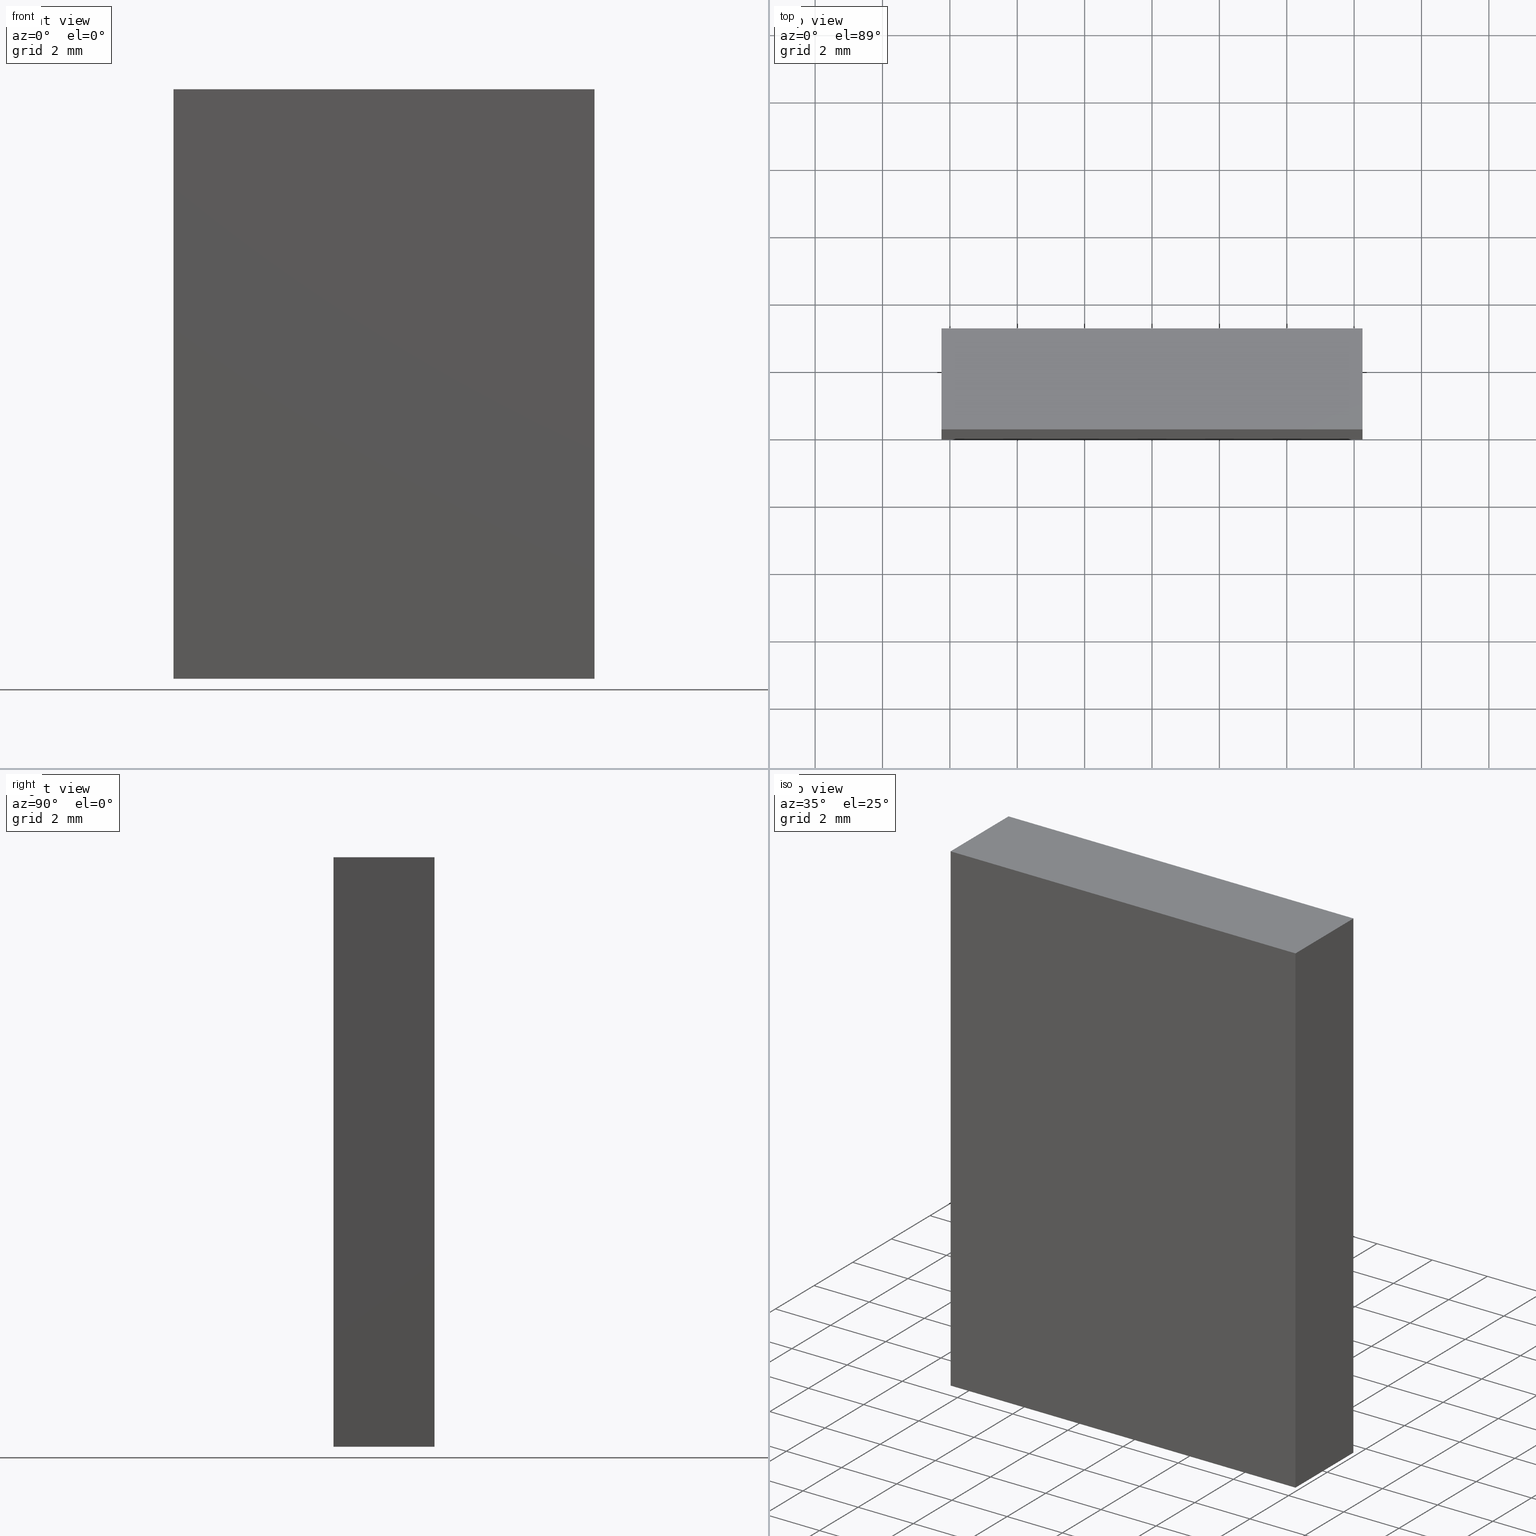
[diagram: canonical four-view strip — front | top / right | iso, engineering-drawing reading convention]
A machine part, canonical four-view strip (front | top / right | iso — engineering-drawing reading convention). The complete STEP part file that produces these views, byte-faithful:
ISO-10303-21;
HEADER;
FILE_DESCRIPTION (( 'STEP AP214' ),
    '1' );
FILE_NAME ('345502.STEP',
    '2019-08-12T02:25:35',
    ( 'user' ),
    ( '΢���й�' ),
    'SwSTEP 2.0',
    'SolidWorks 2016',
    '' );
FILE_SCHEMA (( 'AUTOMOTIVE_DESIGN' ));
ENDSEC;

DATA;
#1 = EDGE_CURVE ( 'NONE', #130, #112, #197, .T. ) ;
#2 = PRODUCT ( '345502', '345502', '', ( #106 ) ) ;
#3 = UNCERTAINTY_MEASURE_WITH_UNIT (LENGTH_MEASURE( 1.000000000000000100E-005 ), #190, 'distance_accuracy_value', 'NONE');
#4 = APPLICATION_CONTEXT ( 'automotive_design' ) ;
#5 = FACE_OUTER_BOUND ( 'NONE', #81, .T. ) ;
#6 = UNCERTAINTY_MEASURE_WITH_UNIT (LENGTH_MEASURE( 1.000000000000000100E-005 ), #198, 'distance_accuracy_value', 'NONE');
#7 = DIRECTION ( 'NONE',  ( -0.0000000000000000000, -1.000000000000000000, -0.0000000000000000000 ) ) ;
#8 = DIRECTION ( 'NONE',  ( 1.000000000000000000, 0.0000000000000000000, 0.0000000000000000000 ) ) ;
#9 = PRODUCT_DEFINITION_FORMATION_WITH_SPECIFIED_SOURCE ( '�κ�', '', #2, .NOT_KNOWN. ) ;
#10 = ORIENTED_EDGE ( 'NONE', *, *, #147, .F. ) ;
#11 = FACE_OUTER_BOUND ( 'NONE', #13, .T. ) ;
#12 = SHAPE_DEFINITION_REPRESENTATION ( #26, #201 ) ;
#13 = EDGE_LOOP ( 'NONE', ( #78, #58, #183, #171 ) ) ;
#14 = ORIENTED_EDGE ( 'NONE', *, *, #169, .T. ) ;
#15 = CARTESIAN_POINT ( 'NONE',  ( 6.249999999999998200, 3.000000000000000000, -8.750000000000000000 ) ) ;
#16 = DIRECTION ( 'NONE',  ( 1.000000000000000000, 0.0000000000000000000, -9.912705577010325500E-017 ) ) ;
#17 = PRODUCT_RELATED_PRODUCT_CATEGORY ( 'part', '', ( #2 ) ) ;
#18 = CLOSED_SHELL ( 'NONE', ( #129, #85, #82, #60, #68, #52 ) ) ;
#19 = FILL_AREA_STYLE ('',( #69 ) ) ;
#20 = DIRECTION ( 'NONE',  ( -1.000000000000000000, 0.0000000000000000000, -0.0000000000000000000 ) ) ;
#21 = DIRECTION ( 'NONE',  ( 0.0000000000000000000, 0.0000000000000000000, 1.000000000000000000 ) ) ;
#22 = ORIENTED_EDGE ( 'NONE', *, *, #117, .T. ) ;
#23 = DIRECTION ( 'NONE',  ( 1.000000000000000000, 0.0000000000000000000, -0.0000000000000000000 ) ) ;
#24 = CARTESIAN_POINT ( 'NONE',  ( -6.250000000000001800, 3.000000000000000000, -8.750000000000000000 ) ) ;
#25 = CARTESIAN_POINT ( 'NONE',  ( 6.249999999999998200, 0.0000000000000000000, -8.750000000000000000 ) ) ;
#26 = PRODUCT_DEFINITION_SHAPE ( 'NONE', 'NONE',  #200 ) ;
#27 = LINE ( 'NONE', #154, #186 ) ;
#28 = PRESENTATION_STYLE_ASSIGNMENT (( #120 ) ) ;
#29 = AXIS2_PLACEMENT_3D ( 'NONE', #137, #42, #122 ) ;
#30 = ORIENTED_EDGE ( 'NONE', *, *, #191, .F. ) ;
#31 =( NAMED_UNIT ( * ) PLANE_ANGLE_UNIT ( ) SI_UNIT ( $, .RADIAN. ) );
#32 = VECTOR ( 'NONE', #125, 1000.000000000000000 ) ;
#33 = CARTESIAN_POINT ( 'NONE',  ( -6.250000000000001800, 0.0000000000000000000, -8.750000000000000000 ) ) ;
#34 = CARTESIAN_POINT ( 'NONE',  ( -6.250000000000001800, 0.0000000000000000000, -8.750000000000000000 ) ) ;
#35 =( NAMED_UNIT ( * ) PLANE_ANGLE_UNIT ( ) SI_UNIT ( $, .RADIAN. ) );
#36 = VECTOR ( 'NONE', #118, 1000.000000000000000 ) ;
#37 = SURFACE_STYLE_FILL_AREA ( #19 ) ;
#38 = AXIS2_PLACEMENT_3D ( 'NONE', #157, #105, #20 ) ;
#39 = FILL_AREA_STYLE_COLOUR ( '', #193 ) ;
#40 = DIRECTION ( 'NONE',  ( -1.000000000000000000, -0.0000000000000000000, -0.0000000000000000000 ) ) ;
#41 = DIRECTION ( 'NONE',  ( -0.0000000000000000000, -1.000000000000000000, -0.0000000000000000000 ) ) ;
#42 = DIRECTION ( 'NONE',  ( 0.0000000000000000000, 1.000000000000000000, 0.0000000000000000000 ) ) ;
#43 = CARTESIAN_POINT ( 'NONE',  ( -6.250000000000000000, 3.000000000000000000, 8.750000000000000000 ) ) ;
#44 = DIRECTION ( 'NONE',  ( -1.000000000000000000, 0.0000000000000000000, 9.912705577010325500E-017 ) ) ;
#45 =( LENGTH_UNIT ( ) NAMED_UNIT ( * ) SI_UNIT ( .MILLI., .METRE. ) );
#46 = VECTOR ( 'NONE', #126, 1000.000000000000000 ) ;
#47 = PLANE ( 'NONE',  #29 ) ;
#48 = VECTOR ( 'NONE', #73, 1000.000000000000000 ) ;
#49 = ORIENTED_EDGE ( 'NONE', *, *, #147, .T. ) ;
#50 = ORIENTED_EDGE ( 'NONE', *, *, #161, .T. ) ;
#51 = VERTEX_POINT ( 'NONE', #128 ) ;
#52 = ADVANCED_FACE ( 'NONE', ( #79 ), #47, .F. ) ;
#53 = DIRECTION ( 'NONE',  ( -9.912705577010325500E-017, -0.0000000000000000000, -1.000000000000000000 ) ) ;
#54 = CARTESIAN_POINT ( 'NONE',  ( -6.250000000000001800, 3.000000000000000000, -8.750000000000000000 ) ) ;
#55 = VERTEX_POINT ( 'NONE', #156 ) ;
#56 = LINE ( 'NONE', #25, #166 ) ;
#57 = CARTESIAN_POINT ( 'NONE',  ( -6.250000000000001800, 3.000000000000000000, -8.750000000000000000 ) ) ;
#58 = ORIENTED_EDGE ( 'NONE', *, *, #169, .F. ) ;
#59 = PLANE ( 'NONE',  #173 ) ;
#60 = ADVANCED_FACE ( 'NONE', ( #11 ), #145, .F. ) ;
#61 = AXIS2_PLACEMENT_3D ( 'NONE', #142, #174, #75 ) ;
#62 = LINE ( 'NONE', #43, #149 ) ;
#63 =( NAMED_UNIT ( * ) SI_UNIT ( $, .STERADIAN. ) SOLID_ANGLE_UNIT ( ) );
#64 = ORIENTED_EDGE ( 'NONE', *, *, #77, .T. ) ;
#65 = EDGE_LOOP ( 'NONE', ( #189, #167, #150, #14 ) ) ;
#66 = ORIENTED_EDGE ( 'NONE', *, *, #87, .F. ) ;
#67 = LINE ( 'NONE', #108, #168 ) ;
#68 = ADVANCED_FACE ( 'NONE', ( #110 ), #100, .T. ) ;
#69 = FILL_AREA_STYLE_COLOUR ( '', #160 ) ;
#70 = FACE_OUTER_BOUND ( 'NONE', #152, .T. ) ;
#71 = VERTEX_POINT ( 'NONE', #88 ) ;
#72 = APPLICATION_PROTOCOL_DEFINITION ( 'draft international standard', 'automotive_design', 1998, #4 ) ;
#73 = DIRECTION ( 'NONE',  ( 9.912705577010325500E-017, 0.0000000000000000000, 1.000000000000000000 ) ) ;
#74 = CARTESIAN_POINT ( 'NONE',  ( -6.250000000000000000, 0.0000000000000000000, 8.750000000000000000 ) ) ;
#75 = DIRECTION ( 'NONE',  ( 0.0000000000000000000, -0.0000000000000000000, 1.000000000000000000 ) ) ;
#76 = VECTOR ( 'NONE', #8, 1000.000000000000000 ) ;
#77 = EDGE_CURVE ( 'NONE', #86, #51, #62, .T. ) ;
#78 = ORIENTED_EDGE ( 'NONE', *, *, #87, .T. ) ;
#79 = FACE_OUTER_BOUND ( 'NONE', #176, .T. ) ;
#80 = AXIS2_PLACEMENT_3D ( 'NONE', #57, #16, #107 ) ;
#81 = EDGE_LOOP ( 'NONE', ( #50, #95, #10, #22 ) ) ;
#82 = ADVANCED_FACE ( 'NONE', ( #70 ), #90, .F. ) ;
#83 = APPLICATION_PROTOCOL_DEFINITION ( 'draft international standard', 'automotive_design', 1998, #163 ) ;
#84 = DIRECTION ( 'NONE',  ( 1.000000000000000000, 0.0000000000000000000, 0.0000000000000000000 ) ) ;
#85 = ADVANCED_FACE ( 'NONE', ( #5 ), #162, .F. ) ;
#86 = VERTEX_POINT ( 'NONE', #138 ) ;
#87 = EDGE_CURVE ( 'NONE', #112, #199, #165, .T. ) ;
#88 = CARTESIAN_POINT ( 'NONE',  ( 6.249999999999998200, 0.0000000000000000000, -8.750000000000000000 ) ) ;
#89 = SURFACE_SIDE_STYLE ('',( #97 ) ) ;
#90 = PLANE ( 'NONE',  #80 ) ;
#91 = LINE ( 'NONE', #195, #155 ) ;
#92 = STYLED_ITEM ( 'NONE', ( #28 ), #101 ) ;
#93 = ORIENTED_EDGE ( 'NONE', *, *, #134, .T. ) ;
#94 =( NAMED_UNIT ( * ) SI_UNIT ( $, .STERADIAN. ) SOLID_ANGLE_UNIT ( ) );
#95 = ORIENTED_EDGE ( 'NONE', *, *, #182, .F. ) ;
#96 = EDGE_CURVE ( 'NONE', #199, #71, #56, .T. ) ;
#97 = SURFACE_STYLE_FILL_AREA ( #144 ) ;
#98 = ORIENTED_EDGE ( 'NONE', *, *, #109, .F. ) ;
#99 = AXIS2_PLACEMENT_3D ( 'NONE', #24, #21, #23 ) ;
#100 = PLANE ( 'NONE',  #61 ) ;
#101 = MANIFOLD_SOLID_BREP ( '͹̨-����1', #18 ) ;
#102 = VECTOR ( 'NONE', #41, 1000.000000000000000 ) ;
#103 = CARTESIAN_POINT ( 'NONE',  ( 0.0000000000000000000, 0.0000000000000000000, 0.0000000000000000000 ) ) ;
#104 = DIRECTION ( 'NONE',  ( 9.912705577010325500E-017, 0.0000000000000000000, 1.000000000000000000 ) ) ;
#105 = DIRECTION ( 'NONE',  ( 0.0000000000000000000, 0.0000000000000000000, -1.000000000000000000 ) ) ;
#106 = PRODUCT_CONTEXT ( 'NONE', #4, 'mechanical' ) ;
#107 = DIRECTION ( 'NONE',  ( -9.912705577010325500E-017, 0.0000000000000000000, -1.000000000000000000 ) ) ;
#108 = CARTESIAN_POINT ( 'NONE',  ( -6.250000000000000000, 3.000000000000000000, 8.750000000000000000 ) ) ;
#109 = EDGE_CURVE ( 'NONE', #55, #86, #151, .T. ) ;
#110 = FACE_OUTER_BOUND ( 'NONE', #178, .T. ) ;
#111 = PRESENTATION_LAYER_ASSIGNMENT (  '', '', ( #92 ) ) ;
#112 = VERTEX_POINT ( 'NONE', #113 ) ;
#113 = CARTESIAN_POINT ( 'NONE',  ( -6.250000000000000000, 0.0000000000000000000, 8.750000000000000000 ) ) ;
#114 = STYLED_ITEM ( 'NONE', ( #119 ), #201 ) ;
#115 = CARTESIAN_POINT ( 'NONE',  ( -6.250000000000001800, 0.0000000000000000000, -8.750000000000000000 ) ) ;
#116 = SURFACE_SIDE_STYLE ('',( #37 ) ) ;
#117 = EDGE_CURVE ( 'NONE', #153, #71, #127, .T. ) ;
#118 = DIRECTION ( 'NONE',  ( -1.000000000000000000, -0.0000000000000000000, -0.0000000000000000000 ) ) ;
#119 = PRESENTATION_STYLE_ASSIGNMENT (( #141 ) ) ;
#120 = SURFACE_STYLE_USAGE ( .BOTH. , #89 ) ;
#121 = LINE ( 'NONE', #115, #36 ) ;
#122 = DIRECTION ( 'NONE',  ( 0.0000000000000000000, -0.0000000000000000000, 1.000000000000000000 ) ) ;
#123 = MECHANICAL_DESIGN_GEOMETRIC_PRESENTATION_REPRESENTATION (  '', ( #92 ), #136 ) ;
#124 = ORIENTED_EDGE ( 'NONE', *, *, #109, .T. ) ;
#125 = DIRECTION ( 'NONE',  ( -0.0000000000000000000, -1.000000000000000000, -0.0000000000000000000 ) ) ;
#126 = DIRECTION ( 'NONE',  ( 9.912705577010325500E-017, 0.0000000000000000000, 1.000000000000000000 ) ) ;
#127 = LINE ( 'NONE', #15, #102 ) ;
#128 = CARTESIAN_POINT ( 'NONE',  ( 6.250000000000000000, 3.000000000000000000, 8.750000000000000000 ) ) ;
#129 = ADVANCED_FACE ( 'NONE', ( #184 ), #59, .F. ) ;
#130 = VERTEX_POINT ( 'NONE', #34 ) ;
#131 = PRESENTATION_LAYER_ASSIGNMENT (  '', '', ( #114 ) ) ;
#132 = LINE ( 'NONE', #194, #148 ) ;
#133 = PRODUCT_DEFINITION_CONTEXT ( 'detailed design', #163, 'design' ) ;
#134 = EDGE_CURVE ( 'NONE', #51, #153, #132, .T. ) ;
#135 = CARTESIAN_POINT ( 'NONE',  ( 6.249999999999998200, 3.000000000000000000, -8.750000000000000000 ) ) ;
#136 =( GEOMETRIC_REPRESENTATION_CONTEXT ( 3 ) GLOBAL_UNCERTAINTY_ASSIGNED_CONTEXT ( ( #6 ) ) GLOBAL_UNIT_ASSIGNED_CONTEXT ( ( #198, #180, #94 ) ) REPRESENTATION_CONTEXT ( 'NONE', 'WORKASPACE' ) );
#137 = CARTESIAN_POINT ( 'NONE',  ( 0.0000000000000000000, 0.0000000000000000000, 0.0000000000000000000 ) ) ;
#138 = CARTESIAN_POINT ( 'NONE',  ( -6.250000000000000000, 3.000000000000000000, 8.750000000000000000 ) ) ;
#139 = DIRECTION ( 'NONE',  ( -9.912705577010325500E-017, -0.0000000000000000000, -1.000000000000000000 ) ) ;
#140 = ORIENTED_EDGE ( 'NONE', *, *, #1, .F. ) ;
#141 = SURFACE_STYLE_USAGE ( .BOTH. , #116 ) ;
#142 = CARTESIAN_POINT ( 'NONE',  ( 0.0000000000000000000, 3.000000000000000000, 0.0000000000000000000 ) ) ;
#143 = ORIENTED_EDGE ( 'NONE', *, *, #96, .F. ) ;
#144 = FILL_AREA_STYLE ('',( #39 ) ) ;
#145 = PLANE ( 'NONE',  #38 ) ;
#146 = MECHANICAL_DESIGN_GEOMETRIC_PRESENTATION_REPRESENTATION (  '', ( #114 ), #158 ) ;
#147 = EDGE_CURVE ( 'NONE', #153, #55, #91, .T. ) ;
#148 = VECTOR ( 'NONE', #139, 1000.000000000000000 ) ;
#149 = VECTOR ( 'NONE', #84, 1000.000000000000000 ) ;
#150 = ORIENTED_EDGE ( 'NONE', *, *, #134, .F. ) ;
#151 = LINE ( 'NONE', #54, #46 ) ;
#152 = EDGE_LOOP ( 'NONE', ( #172, #30, #98, #188 ) ) ;
#153 = VERTEX_POINT ( 'NONE', #135 ) ;
#154 = CARTESIAN_POINT ( 'NONE',  ( -6.250000000000001800, 3.000000000000000000, -8.750000000000000000 ) ) ;
#155 = VECTOR ( 'NONE', #40, 1000.000000000000000 ) ;
#156 = CARTESIAN_POINT ( 'NONE',  ( -6.250000000000001800, 3.000000000000000000, -8.750000000000000000 ) ) ;
#157 = CARTESIAN_POINT ( 'NONE',  ( -6.250000000000000000, 3.000000000000000000, 8.750000000000000000 ) ) ;
#158 =( GEOMETRIC_REPRESENTATION_CONTEXT ( 3 ) GLOBAL_UNCERTAINTY_ASSIGNED_CONTEXT ( ( #3 ) ) GLOBAL_UNIT_ASSIGNED_CONTEXT ( ( #190, #31, #159 ) ) REPRESENTATION_CONTEXT ( 'NONE', 'WORKASPACE' ) );
#159 =( NAMED_UNIT ( * ) SI_UNIT ( $, .STERADIAN. ) SOLID_ANGLE_UNIT ( ) );
#160 = COLOUR_RGB ( '',1.000000000000000000, 1.000000000000000000, 1.000000000000000000 ) ;
#161 = EDGE_CURVE ( 'NONE', #71, #130, #121, .T. ) ;
#162 = PLANE ( 'NONE',  #99 ) ;
#163 = APPLICATION_CONTEXT ( 'automotive_design' ) ;
#164 =( GEOMETRIC_REPRESENTATION_CONTEXT ( 3 ) GLOBAL_UNCERTAINTY_ASSIGNED_CONTEXT ( ( #170 ) ) GLOBAL_UNIT_ASSIGNED_CONTEXT ( ( #45, #35, #63 ) ) REPRESENTATION_CONTEXT ( 'NONE', 'WORKASPACE' ) );
#165 = LINE ( 'NONE', #74, #76 ) ;
#166 = VECTOR ( 'NONE', #53, 1000.000000000000000 ) ;
#167 = ORIENTED_EDGE ( 'NONE', *, *, #117, .F. ) ;
#168 = VECTOR ( 'NONE', #192, 1000.000000000000000 ) ;
#169 = EDGE_CURVE ( 'NONE', #51, #199, #202, .T. ) ;
#170 = UNCERTAINTY_MEASURE_WITH_UNIT (LENGTH_MEASURE( 1.000000000000000100E-005 ), #45, 'distance_accuracy_value', 'NONE');
#171 = ORIENTED_EDGE ( 'NONE', *, *, #191, .T. ) ;
#172 = ORIENTED_EDGE ( 'NONE', *, *, #1, .T. ) ;
#173 = AXIS2_PLACEMENT_3D ( 'NONE', #177, #44, #104 ) ;
#174 = DIRECTION ( 'NONE',  ( 0.0000000000000000000, 1.000000000000000000, 0.0000000000000000000 ) ) ;
#175 = DIRECTION ( 'NONE',  ( 1.000000000000000000, 0.0000000000000000000, 0.0000000000000000000 ) ) ;
#176 = EDGE_LOOP ( 'NONE', ( #143, #66, #140, #181 ) ) ;
#177 = CARTESIAN_POINT ( 'NONE',  ( 6.249999999999998200, 3.000000000000000000, -8.750000000000000000 ) ) ;
#178 = EDGE_LOOP ( 'NONE', ( #93, #49, #124, #64 ) ) ;
#179 = CARTESIAN_POINT ( 'NONE',  ( 6.250000000000000000, 3.000000000000000000, 8.750000000000000000 ) ) ;
#180 =( NAMED_UNIT ( * ) PLANE_ANGLE_UNIT ( ) SI_UNIT ( $, .RADIAN. ) );
#181 = ORIENTED_EDGE ( 'NONE', *, *, #161, .F. ) ;
#182 = EDGE_CURVE ( 'NONE', #55, #130, #27, .T. ) ;
#183 = ORIENTED_EDGE ( 'NONE', *, *, #77, .F. ) ;
#184 = FACE_OUTER_BOUND ( 'NONE', #65, .T. ) ;
#185 = DIRECTION ( 'NONE',  ( 0.0000000000000000000, 0.0000000000000000000, 1.000000000000000000 ) ) ;
#186 = VECTOR ( 'NONE', #7, 1000.000000000000000 ) ;
#187 = AXIS2_PLACEMENT_3D ( 'NONE', #103, #185, #175 ) ;
#188 = ORIENTED_EDGE ( 'NONE', *, *, #182, .T. ) ;
#189 = ORIENTED_EDGE ( 'NONE', *, *, #96, .T. ) ;
#190 =( LENGTH_UNIT ( ) NAMED_UNIT ( * ) SI_UNIT ( .MILLI., .METRE. ) );
#191 = EDGE_CURVE ( 'NONE', #86, #112, #67, .T. ) ;
#192 = DIRECTION ( 'NONE',  ( -0.0000000000000000000, -1.000000000000000000, -0.0000000000000000000 ) ) ;
#193 = COLOUR_RGB ( '',1.000000000000000000, 1.000000000000000000, 1.000000000000000000 ) ;
#194 = CARTESIAN_POINT ( 'NONE',  ( 6.249999999999998200, 3.000000000000000000, -8.750000000000000000 ) ) ;
#195 = CARTESIAN_POINT ( 'NONE',  ( -6.250000000000001800, 3.000000000000000000, -8.750000000000000000 ) ) ;
#196 = CARTESIAN_POINT ( 'NONE',  ( 6.250000000000000000, 0.0000000000000000000, 8.750000000000000000 ) ) ;
#197 = LINE ( 'NONE', #33, #48 ) ;
#198 =( LENGTH_UNIT ( ) NAMED_UNIT ( * ) SI_UNIT ( .MILLI., .METRE. ) );
#199 = VERTEX_POINT ( 'NONE', #196 ) ;
#200 = PRODUCT_DEFINITION ( 'δ֪', '', #9, #133 ) ;
#201 = ADVANCED_BREP_SHAPE_REPRESENTATION ( '345502', ( #101, #187 ), #164 ) ;
#202 = LINE ( 'NONE', #179, #32 ) ;
ENDSEC;
END-ISO-10303-21;
